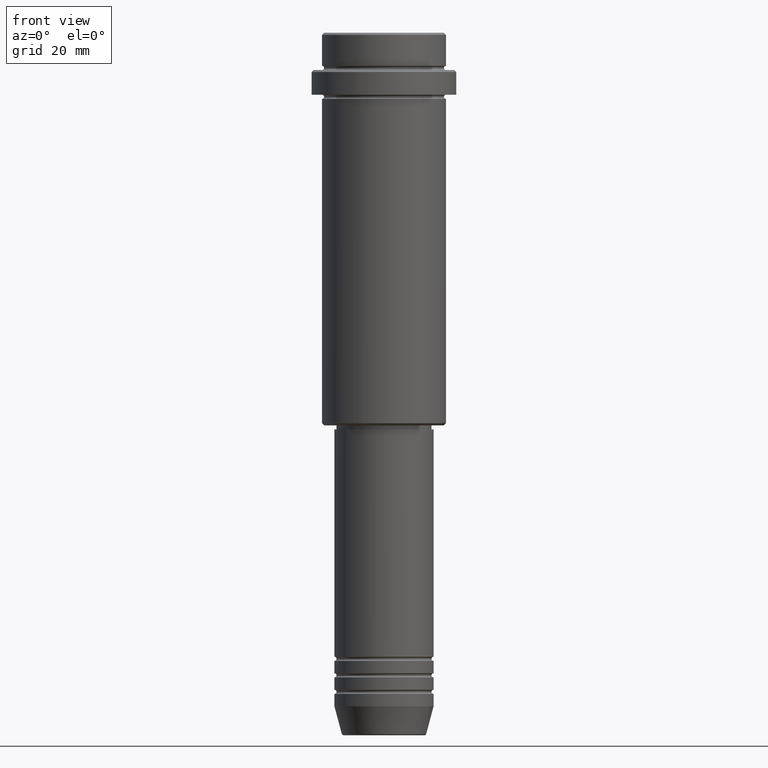
[diagram: clean part render]
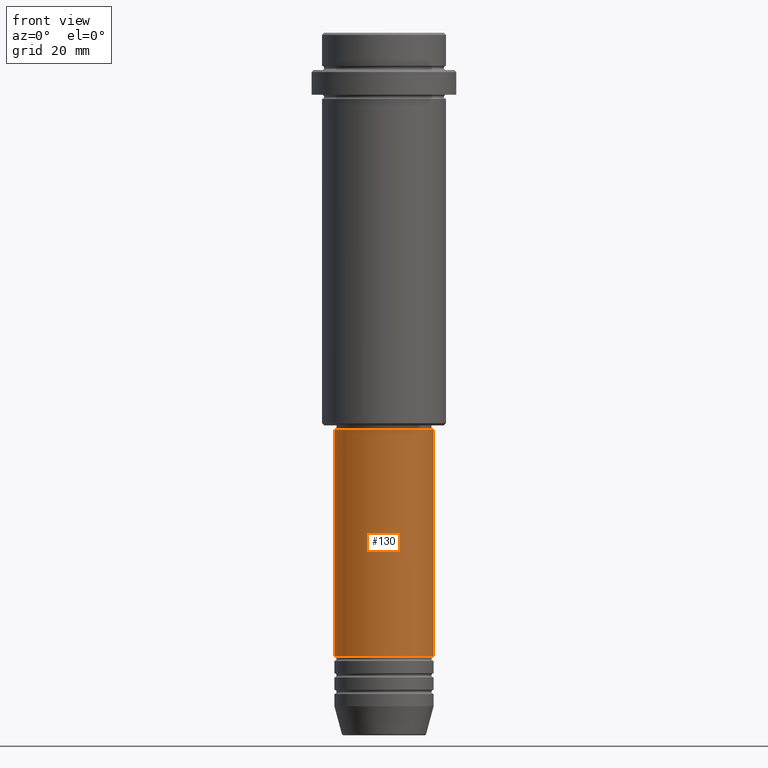
[diagram: same view with one face highlighted and labeled with its STEP entity id]
A machine part, front view. The second image highlights one B-rep face of the part: STEP entity #130.
In plain terms, the highlighted cylindrical surface (partial cylindrical patch) has radius 12 mm, axis along (-0, -0, 1).
Its self-contained STEP definition (entity closure, byte-faithful):
#92 = DIRECTION ( 'NONE',  ( -0.000000000000000000, -0.000000000000000000, 1.000000000000000000 ) ) ;
#130 = ADVANCED_FACE ( 'NONE', ( #1123 ), #161, .T. ) ;
#133 = AXIS2_PLACEMENT_3D ( 'NONE', #144, #353, #569 ) ;
#144 = CARTESIAN_POINT ( 'NONE',  ( 0.000000000000000000, 0.000000000000000000, -150.9999999999999147 ) ) ;
#161 = CYLINDRICAL_SURFACE ( 'NONE', #477, 12.00000000000000000 ) ;
#223 = CARTESIAN_POINT ( 'NONE',  ( -12.00000000000000000, 1.469576158976823947E-15, -150.9999999999999147 ) ) ;
#245 = DIRECTION ( 'NONE',  ( -0.000000000000000000, -0.000000000000000000, 1.000000000000000000 ) ) ;
#289 = VECTOR ( 'NONE', #691, 1000.000000000000000 ) ;
#302 = ORIENTED_EDGE ( 'NONE', *, *, #396, .F. ) ;
#353 = DIRECTION ( 'NONE',  ( -0.000000000000000000, -0.000000000000000000, 1.000000000000000000 ) ) ;
#396 = EDGE_CURVE ( 'NONE', #1281, #805, #1346, .T. ) ;
#459 = CARTESIAN_POINT ( 'NONE',  ( -11.99999999999999822, 1.469576158976823750E-15, -96.00000000000000000 ) ) ;
#471 = CARTESIAN_POINT ( 'NONE',  ( 12.00000000000000000, 0.000000000000000000, 0.000000000000000000 ) ) ;
#476 = EDGE_CURVE ( 'NONE', #805, #997, #654, .T. ) ;
#477 = AXIS2_PLACEMENT_3D ( 'NONE', #940, #591, #1025 ) ;
#544 = CARTESIAN_POINT ( 'NONE',  ( 11.99999999999999822, 0.000000000000000000, -96.00000000000000000 ) ) ;
#569 = DIRECTION ( 'NONE',  ( 1.000000000000000000, 0.000000000000000000, 0.000000000000000000 ) ) ;
#591 = DIRECTION ( 'NONE',  ( -0.000000000000000000, -0.000000000000000000, 1.000000000000000000 ) ) ;
#624 = EDGE_CURVE ( 'NONE', #1281, #726, #884, .T. ) ;
#654 = CIRCLE ( 'NONE', #709, 11.99999999999999822 ) ;
#691 = DIRECTION ( 'NONE',  ( -0.000000000000000000, -0.000000000000000000, 1.000000000000000000 ) ) ;
#709 = AXIS2_PLACEMENT_3D ( 'NONE', #1251, #92, #943 ) ;
#726 = VERTEX_POINT ( 'NONE', #1032 ) ;
#768 = CARTESIAN_POINT ( 'NONE',  ( -12.00000000000000000, 1.469576158976823947E-15, 0.000000000000000000 ) ) ;
#805 = VERTEX_POINT ( 'NONE', #459 ) ;
#852 = EDGE_LOOP ( 'NONE', ( #302, #1264, #1106, #1195 ) ) ;
#884 = CIRCLE ( 'NONE', #133, 12.00000000000000000 ) ;
#940 = CARTESIAN_POINT ( 'NONE',  ( 0.000000000000000000, 0.000000000000000000, 0.000000000000000000 ) ) ;
#943 = DIRECTION ( 'NONE',  ( 1.000000000000000000, 0.000000000000000000, 0.000000000000000000 ) ) ;
#997 = VERTEX_POINT ( 'NONE', #544 ) ;
#1025 = DIRECTION ( 'NONE',  ( 1.000000000000000000, 0.000000000000000000, 0.000000000000000000 ) ) ;
#1032 = CARTESIAN_POINT ( 'NONE',  ( 12.00000000000000000, 0.000000000000000000, -150.9999999999999147 ) ) ;
#1036 = EDGE_CURVE ( 'NONE', #726, #997, #1050, .T. ) ;
#1050 = LINE ( 'NONE', #471, #289 ) ;
#1106 = ORIENTED_EDGE ( 'NONE', *, *, #1036, .T. ) ;
#1123 = FACE_OUTER_BOUND ( 'NONE', #852, .T. ) ;
#1195 = ORIENTED_EDGE ( 'NONE', *, *, #476, .F. ) ;
#1251 = CARTESIAN_POINT ( 'NONE',  ( 0.000000000000000000, 0.000000000000000000, -96.00000000000000000 ) ) ;
#1264 = ORIENTED_EDGE ( 'NONE', *, *, #624, .T. ) ;
#1281 = VERTEX_POINT ( 'NONE', #223 ) ;
#1346 = LINE ( 'NONE', #768, #1393 ) ;
#1393 = VECTOR ( 'NONE', #245, 1000.000000000000000 ) ;